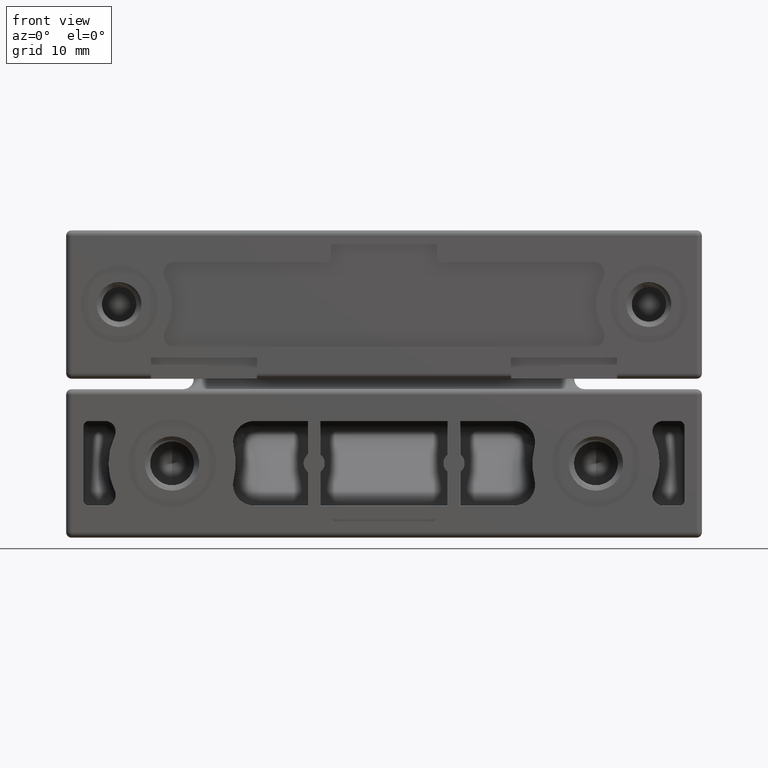
[diagram: clean part render]
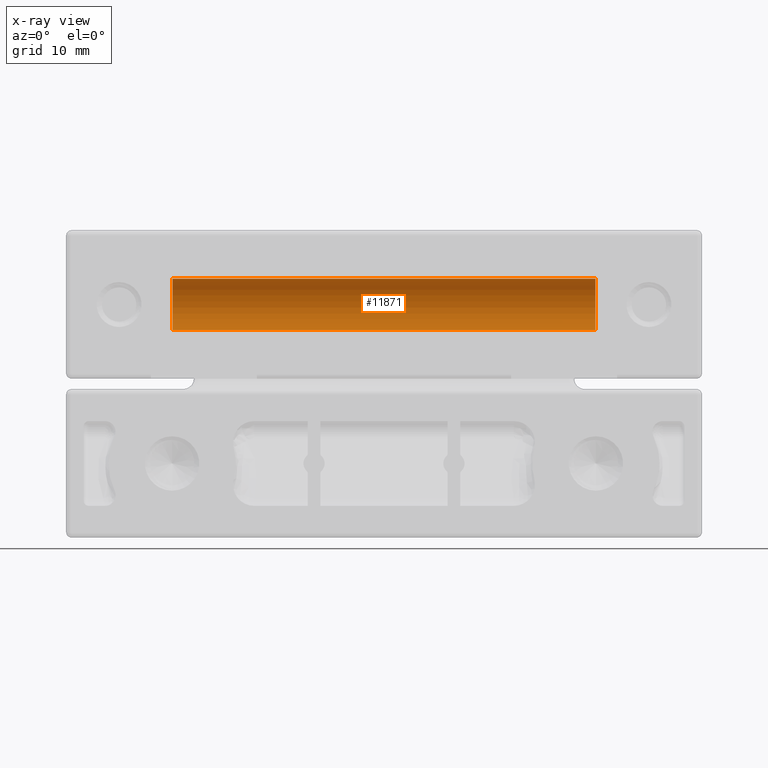
[diagram: x-ray — body ghosted, one internal face saturated and labeled with its STEP entity id]
A machine part, front view, then the same camera in x-ray: the body is ghosted and one INTERNAL B-rep face — a face not visible from any outside direction — is saturated and labeled: STEP entity #11871.
In plain terms, the highlighted cylindrical surface (edge-blend (fillet) strip) has radius 2.425 mm, axis along (1, -0, -0).
Its self-contained STEP definition (entity closure, byte-faithful):
#226 = ORIENTED_EDGE ( 'NONE', *, *, #15494, .F. ) ;
#525 = VECTOR ( 'NONE', #12572, 1000.000000000000000 ) ;
#863 = CARTESIAN_POINT ( 'NONE',  ( 19.94999999999999900, -8.931070637511983100E-014, 2.425000000000000300 ) ) ;
#2228 = VERTEX_POINT ( 'NONE', #863 ) ;
#2362 = ORIENTED_EDGE ( 'NONE', *, *, #5912, .T. ) ;
#2498 = FACE_OUTER_BOUND ( 'NONE', #3929, .T. ) ;
#2626 = VECTOR ( 'NONE', #21486, 1000.000000000000000 ) ;
#3868 = AXIS2_PLACEMENT_3D ( 'NONE', #11188, #26412, #13395 ) ;
#3929 = EDGE_LOOP ( 'NONE', ( #2362, #23162, #8272, #226 ) ) ;
#4340 = DIRECTION ( 'NONE',  ( -1.000000000000000000, 0.0000000000000000000, 0.0000000000000000000 ) ) ;
#4651 = DIRECTION ( 'NONE',  ( 0.0000000000000000000, 2.544261098099320800E-015, 1.000000000000000000 ) ) ;
#5912 = EDGE_CURVE ( 'NONE', #22017, #7183, #10843, .T. ) ;
#6330 = LINE ( 'NONE', #10355, #525 ) ;
#7183 = VERTEX_POINT ( 'NONE', #26296 ) ;
#7245 = VERTEX_POINT ( 'NONE', #17745 ) ;
#8272 = ORIENTED_EDGE ( 'NONE', *, *, #26624, .F. ) ;
#10355 = CARTESIAN_POINT ( 'NONE',  ( 19.94999999999999900, -1.019473495496947600E-013, -2.425000000000000300 ) ) ;
#10843 = CIRCLE ( 'NONE', #23014, 2.425000000000000300 ) ;
#11188 = CARTESIAN_POINT ( 'NONE',  ( 19.94999999999999900, -9.548053953801068300E-014, 0.0000000000000000000 ) ) ;
#11871 = ADVANCED_FACE ( 'NONE', ( #2498 ), #16148, .F. ) ;
#12572 = DIRECTION ( 'NONE',  ( 1.000000000000000000, -2.789190457928790300E-015, -6.123233995736769700E-017 ) ) ;
#13395 = DIRECTION ( 'NONE',  ( 0.0000000000000000000, 2.544261098099320800E-015, 1.000000000000000000 ) ) ;
#15094 = CARTESIAN_POINT ( 'NONE',  ( 19.94999999999999900, -8.931070637511983100E-014, 2.425000000000000300 ) ) ;
#15494 = EDGE_CURVE ( 'NONE', #22017, #2228, #25816, .T. ) ;
#16148 = CYLINDRICAL_SURFACE ( 'NONE', #27610, 2.425000000000000300 ) ;
#16382 = CIRCLE ( 'NONE', #3868, 2.425000000000000300 ) ;
#17413 = CARTESIAN_POINT ( 'NONE',  ( -19.94999999999999900, -9.059419880941278600E-014, 0.0000000000000000000 ) ) ;
#17718 = EDGE_CURVE ( 'NONE', #7183, #7245, #6330, .T. ) ;
#17745 = CARTESIAN_POINT ( 'NONE',  ( 19.94999999999999900, -4.630299991401537800E-014, -2.424999999999999800 ) ) ;
#19604 = DIRECTION ( 'NONE',  ( 0.0000000000000000000, 0.0000000000000000000, 1.000000000000000000 ) ) ;
#19920 = CARTESIAN_POINT ( 'NONE',  ( 19.94999999999999900, -9.548053953801068300E-014, 0.0000000000000000000 ) ) ;
#20311 = CARTESIAN_POINT ( 'NONE',  ( -19.94999999999999900, -9.059419880941278600E-014, 2.425000000000000300 ) ) ;
#21486 = DIRECTION ( 'NONE',  ( 1.000000000000000000, -2.789190457928790300E-015, -6.123233995736769700E-017 ) ) ;
#22017 = VERTEX_POINT ( 'NONE', #20311 ) ;
#22114 = DIRECTION ( 'NONE',  ( 1.000000000000000000, -2.789190457928790300E-015, -6.123233995736769700E-017 ) ) ;
#23014 = AXIS2_PLACEMENT_3D ( 'NONE', #17413, #4340, #19604 ) ;
#23162 = ORIENTED_EDGE ( 'NONE', *, *, #17718, .T. ) ;
#25816 = LINE ( 'NONE', #15094, #2626 ) ;
#26296 = CARTESIAN_POINT ( 'NONE',  ( -19.94999999999999900, -4.630299991401538400E-014, -2.424999999999999800 ) ) ;
#26412 = DIRECTION ( 'NONE',  ( -1.000000000000000000, 2.789190457928790300E-015, 6.123233995736769700E-017 ) ) ;
#26624 = EDGE_CURVE ( 'NONE', #2228, #7245, #16382, .T. ) ;
#27610 = AXIS2_PLACEMENT_3D ( 'NONE', #19920, #22114, #4651 ) ;